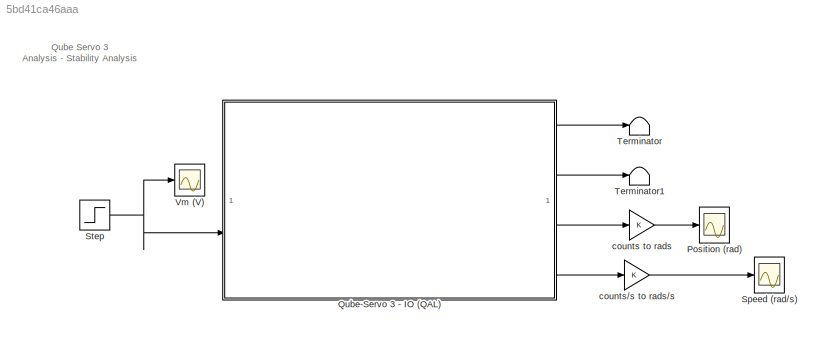
MODEL slx_5bd41ca46aaa
KIND model
CONFIG AbsTol = auto
CONFIG EnableMultiTasking = on
CONFIG FixedStep = 0.002
CONFIG MaxStep = auto
CONFIG MinStep = auto
CONFIG RelTol = 1e-3
CONFIG SampleTimeConstraint = Unconstrained
CONFIG SolverName = ode1
CONFIG StartTime = 0.0
CONFIG StopTime = inf
BLOCK [Scope] Position (rad)
  Floating = off
  NumInputPorts = 1
  ScopeSpecificationString = Simulink.scopes.TimeScopeBlockCfg('CurrentConfiguration', extmgr.ConfigurationSet(extmgr.Configuration('Core','General UI',true),extmgr.Configuration('Core','Source UI',true),extmgr.Configuration('Sources','WiredSimulink',true,'DataLogging',true,'DataLoggingSaveFormat','Array','DataLoggingVariableName','position'),extmgr.Configuration('Visuals','Time Domain',true,'SerializedDisplays',{struct('MinY...<+1607ch>
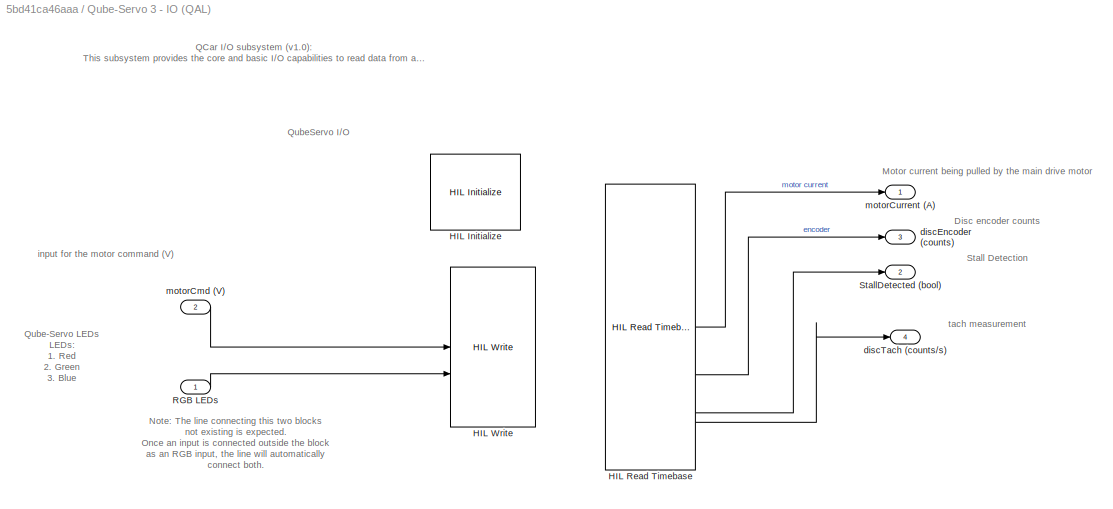
BLOCK [SubSystem] Qube-Servo 3 - IO (QAL)
  CopyFcn = set_param(gcbh,'LinkStatus','none');
  UserDataPersistent = on
BLOCK [Reference] Qube-Servo 3 - IO (QAL)/HIL Initialize  REF=quarc_library/Data Acquisition/Generic/Configuration/HIL Initialize
  AttributesFormatString = %<object_name> (%<board_type>-%<board_number>)
  SourceBlock = quarc_library/Data Acquisition/Generic/Configuration/HIL Initialize
  SourceProductName = QUARC Targets
  SourceType = HIL Initialize
  UserDataPersistent = on
BLOCK [Reference] Qube-Servo 3 - IO (QAL)/HIL Read Timebase  REF=quarc_library/Data Acquisition/Generic/Timebases/HIL Read
Timebase
  AttributesFormatString = (%<object_name>)
  SourceBlock = quarc_library/Data Acquisition/Generic/Timebases/HIL Read\nTimebase
  SourceProductName = QUARC Targets
  SourceType = HIL Read Timebase
  UserDataPersistent = on
BLOCK [Reference] Qube-Servo 3 - IO (QAL)/HIL Write  REF=quarc_library/Data Acquisition/Generic/Immediate I//O/HIL Write
  AttributesFormatString = (%<object_name>)
  SourceBlock = quarc_library/Data Acquisition/Generic/Immediate I//O/HIL Write
  SourceProductName = QUARC Targets
  SourceType = HIL Write
  UserDataPersistent = on
BLOCK [Inport] Qube-Servo 3 - IO (QAL)/RGB LEDs
BLOCK [Outport] Qube-Servo 3 - IO (QAL)/StallDetected (bool)
  Port = 2
  VectorParamsAs1DForOutWhenUnconnected = off
BLOCK [Outport] Qube-Servo 3 - IO (QAL)/discEncoder (counts)
  Port = 3
  VectorParamsAs1DForOutWhenUnconnected = off
BLOCK [Outport] Qube-Servo 3 - IO (QAL)/discTach (counts//s)
  Port = 4
  VectorParamsAs1DForOutWhenUnconnected = off
BLOCK [Inport] Qube-Servo 3 - IO (QAL)/motorCmd (V)
  Port = 2
BLOCK [Outport] Qube-Servo 3 - IO (QAL)/motorCurrent (A)
  VectorParamsAs1DForOutWhenUnconnected = off
BLOCK [Scope] Speed (rad//s)
  Floating = off
  NumInputPorts = 1
  ScopeSpecificationString = Simulink.scopes.TimeScopeBlockCfg('CurrentConfiguration', extmgr.ConfigurationSet(extmgr.Configuration('Core','General UI',true),extmgr.Configuration('Core','Source UI',true),extmgr.Configuration('Sources','WiredSimulink',true,'DataLogging',true,'DataLoggingSaveFormat','Array','DataLoggingVariableName','speed'),extmgr.Configuration('Visuals','Time Domain',true,'SerializedDisplays',{struct('MinYLim...<+1604ch>
BLOCK [Step] Step
  SampleTime = 0
BLOCK [Terminator] Terminator
BLOCK [Terminator] Terminator1
BLOCK [Scope] Vm (V)
  Floating = off
  NumInputPorts = 1
  ScopeSpecificationString = Simulink.scopes.TimeScopeBlockCfg('CurrentConfiguration', extmgr.ConfigurationSet(extmgr.Configuration('Core','General UI',true),extmgr.Configuration('Core','Source UI',true),extmgr.Configuration('Sources','WiredSimulink',true,'DataLoggingVariableName','voltage','DataLogging',true,'DataLoggingSaveFormat','Array'),extmgr.Configuration('Visuals','Time Domain',true,'SerializedDisplays',{struct('MinYL...<+1451ch>
BLOCK [Gain] counts to rads
BLOCK [Gain] counts//s to rads//s
ANNOTATION (root): Qube Servo 3 Analysis - Stability Analysis
ANNOTATION Qube-Servo 3 - IO (QAL): QCar I/O subsystem (v1.0): This subsystem provides the core and basic I/O capabilities to read data from and write data to the Qube Servo. The HIL Initialize block configures the IO settings, and the HIL Write and Read blocks are used for the actual IO.
ANNOTATION Qube-Servo 3 - IO (QAL): Disc encoder counts
ANNOTATION Qube-Servo 3 - IO (QAL): Stall Detection
ANNOTATION Qube-Servo 3 - IO (QAL): tach measurement
ANNOTATION Qube-Servo 3 - IO (QAL): Motor current being pulled by the main drive motor
ANNOTATION Qube-Servo 3 - IO (QAL): Qube-Servo LEDs LEDs: 1. Red 2. Green 3. Blue
ANNOTATION Qube-Servo 3 - IO (QAL): input for the motor command (V)
ANNOTATION Qube-Servo 3 - IO (QAL): Note: The line connecting this two blocks not existing is expected. Once an input is connected outside the block as an RGB input, the line will automatically connect both.
ANNOTATION Qube-Servo 3 - IO (QAL): QubeServo I/O
LINE Qube-Servo 3 - IO (QAL):1 -> Terminator:1
LINE Qube-Servo 3 - IO (QAL):2 -> Terminator1:1
LINE Qube-Servo 3 - IO (QAL):3 -> counts to rads:1
LINE Qube-Servo 3 - IO (QAL):4 -> counts//s to rads//s:1
NET Step:1 -> Qube-Servo 3 - IO (QAL):2, Vm (V):1
LINE counts to rads:1 -> Position (rad):1
LINE counts//s to rads//s:1 -> Speed (rad//s):1
note: NET lines group one-source signal fan-out (src -> all destinations, sorted); 1:1 wires keep LINE
